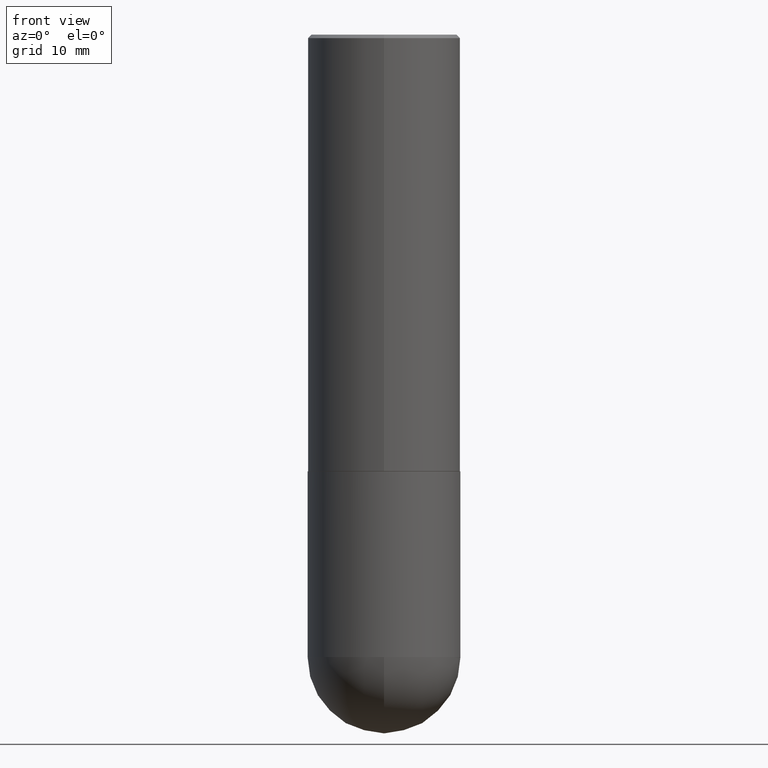
[diagram: clean part render]
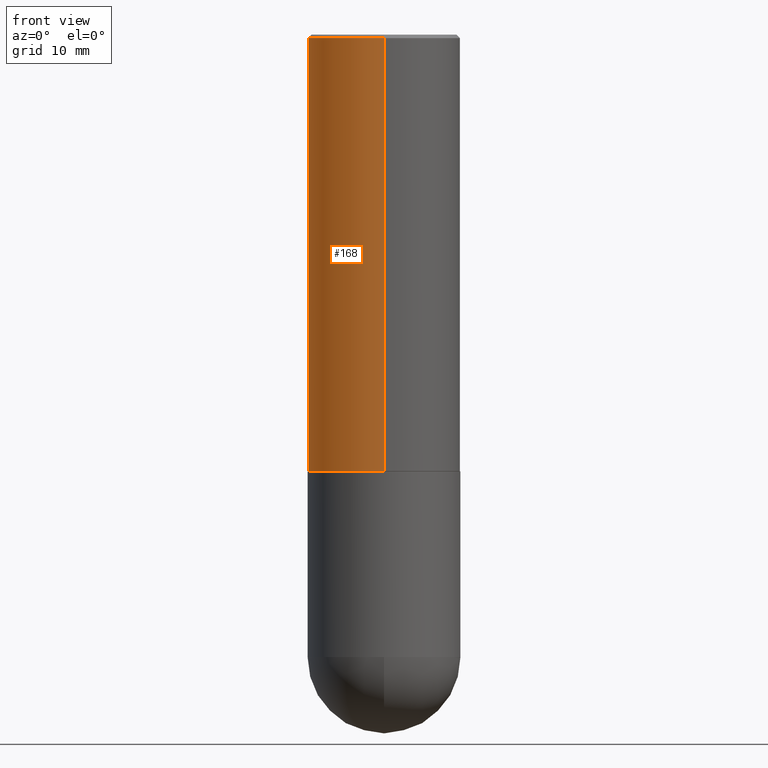
[diagram: same view with one face highlighted and labeled with its STEP entity id]
A machine part, front view. The second image highlights one B-rep face of the part: STEP entity #168.
In plain terms, the highlighted cylindrical surface (partial cylindrical patch) has radius 11.1125 mm, axis along (-0, 0, 1).
Its self-contained STEP definition (entity closure, byte-faithful):
#10 = AXIS2_PLACEMENT_3D ( 'NONE', #200, #272, #114 ) ;
#15 = VERTEX_POINT ( 'NONE', #280 ) ;
#21 = ORIENTED_EDGE ( 'NONE', *, *, #97, .T. ) ;
#35 = CARTESIAN_POINT ( 'NONE',  ( 3.108624468950438708E-15, 0.4375000000000001110, -1.527453912101369540E-15 ) ) ;
#38 = AXIS2_PLACEMENT_3D ( 'NONE', #349, #64, #195 ) ;
#43 = CIRCLE ( 'NONE', #10, 0.4375000000000002776 ) ;
#53 = VECTOR ( 'NONE', #101, 39.37007874015748143 ) ;
#58 = ORIENTED_EDGE ( 'NONE', *, *, #150, .F. ) ;
#64 = DIRECTION ( 'NONE',  ( -2.445579214634029192E-29, 3.491323227660272783E-15, 1.000000000000000000 ) ) ;
#94 = EDGE_LOOP ( 'NONE', ( #345, #209, #21, #58 ) ) ;
#96 = LINE ( 'NONE', #222, #53 ) ;
#97 = EDGE_CURVE ( 'NONE', #306, #187, #96, .T. ) ;
#100 = FACE_OUTER_BOUND ( 'NONE', #94, .T. ) ;
#101 = DIRECTION ( 'NONE',  ( -2.445579214634028911E-29, 3.491323227660273177E-15, 1.000000000000000000 ) ) ;
#114 = DIRECTION ( 'NONE',  ( -6.982962677686265133E-15, -1.000000000000000000, 3.746534391310987190E-15 ) ) ;
#128 = DIRECTION ( 'NONE',  ( -2.445579214634029192E-29, 3.491323227660272783E-15, 1.000000000000000000 ) ) ;
#137 = AXIS2_PLACEMENT_3D ( 'NONE', #313, #128, #227 ) ;
#150 = EDGE_CURVE ( 'NONE', #159, #187, #171, .T. ) ;
#159 = VERTEX_POINT ( 'NONE', #375 ) ;
#168 = ADVANCED_FACE ( 'NONE', ( #100 ), #225, .T. ) ;
#169 = DIRECTION ( 'NONE',  ( -2.445579214634028911E-29, 3.491323227660273177E-15, 1.000000000000000000 ) ) ;
#171 = CIRCLE ( 'NONE', #137, 0.4375000000000000000 ) ;
#187 = VERTEX_POINT ( 'NONE', #351 ) ;
#195 = DIRECTION ( 'NONE',  ( -6.982962677686265922E-15, -1.000000000000000000, 3.491323227660272388E-15 ) ) ;
#200 = CARTESIAN_POINT ( 'NONE',  ( 6.111502457370440261E-29, -8.724816745923021924E-15, -2.499000000000000110 ) ) ;
#201 = LINE ( 'NONE', #35, #293 ) ;
#209 = ORIENTED_EDGE ( 'NONE', *, *, #255, .T. ) ;
#222 = CARTESIAN_POINT ( 'NONE',  ( -3.055046171487742080E-15, -0.4375000000000001110, 1.527453912101369540E-15 ) ) ;
#225 = CYLINDRICAL_SURFACE ( 'NONE', #38, 0.4375000000000001110 ) ;
#227 = DIRECTION ( 'NONE',  ( -6.982962677686265133E-15, -1.000000000000000000, 3.492862791899308071E-15 ) ) ;
#255 = EDGE_CURVE ( 'NONE', #15, #306, #43, .T. ) ;
#272 = DIRECTION ( 'NONE',  ( -2.445579214634029192E-29, 3.491323227660272783E-15, 1.000000000000000000 ) ) ;
#280 = CARTESIAN_POINT ( 'NONE',  ( 3.108624468950470262E-15, 0.4374999999999915068, -2.499000000000001886 ) ) ;
#293 = VECTOR ( 'NONE', #169, 39.37007874015748143 ) ;
#297 = EDGE_CURVE ( 'NONE', #15, #159, #201, .T. ) ;
#306 = VERTEX_POINT ( 'NONE', #386 ) ;
#313 = CARTESIAN_POINT ( 'NONE',  ( 4.891158429268082416E-31, -6.982646455320579930E-17, -0.02000000000000009756 ) ) ;
#345 = ORIENTED_EDGE ( 'NONE', *, *, #297, .F. ) ;
#349 = CARTESIAN_POINT ( 'NONE',  ( 0.000000000000000000, 0.000000000000000000, 0.000000000000000000 ) ) ;
#351 = CARTESIAN_POINT ( 'NONE',  ( -3.001467874025043875E-15, -0.4375000000000000555, -0.01999999999999857100 ) ) ;
#375 = CARTESIAN_POINT ( 'NONE',  ( 3.055046171487741686E-15, 0.4374999999999998890, -0.02000000000000162759 ) ) ;
#386 = CARTESIAN_POINT ( 'NONE',  ( -3.055046171487681732E-15, -0.4375000000000089928, -2.498999999999998778 ) ) ;